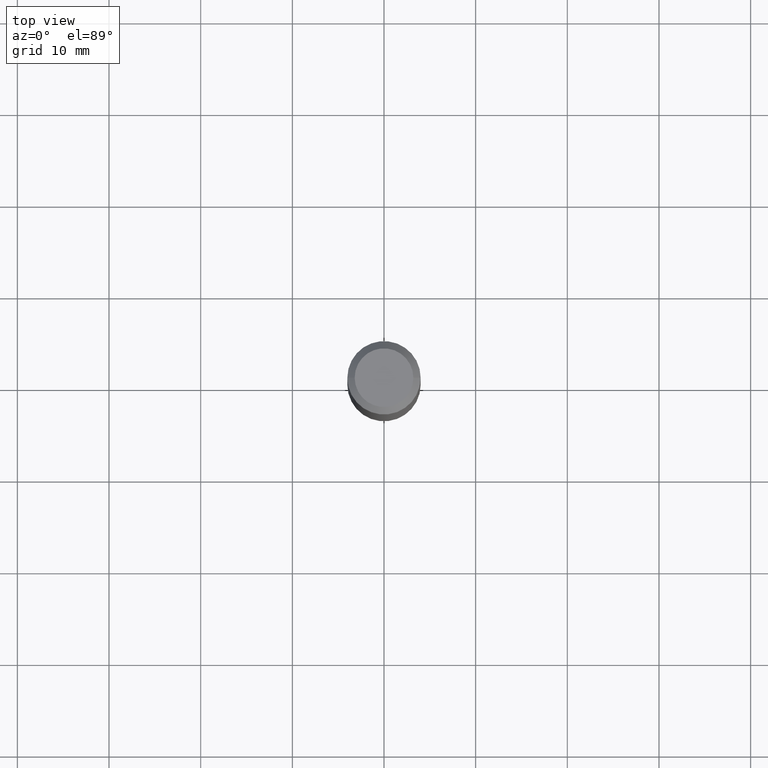
[diagram: clean part render]
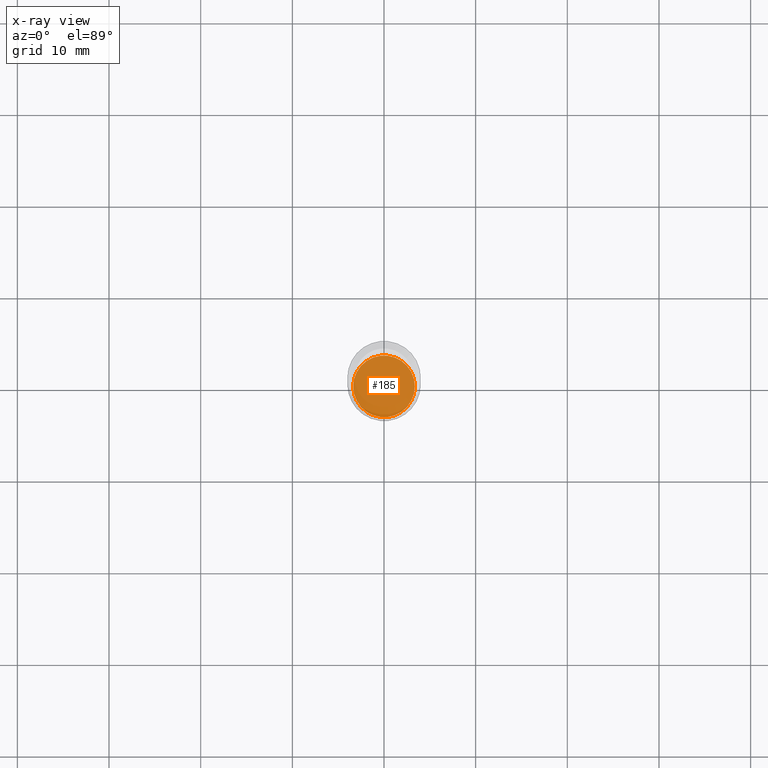
[diagram: x-ray — body ghosted, one internal face saturated and labeled with its STEP entity id]
A machine part, top view, then the same camera in x-ray: the body is ghosted and one INTERNAL B-rep face — a face not visible from any outside direction — is saturated and labeled: STEP entity #185.
In plain terms, the highlighted planar face has unit normal (-0, 0, 1).
Its self-contained STEP definition (entity closure, byte-faithful):
#3 = DIRECTION ( 'NONE',  ( 1.000000000000000000, -6.982962677686265922E-15, 4.876176775795935793E-29 ) ) ;
#12 = VERTEX_POINT ( 'NONE', #405 ) ;
#19 = AXIS2_PLACEMENT_3D ( 'NONE', #187, #339, #490 ) ;
#63 = ORIENTED_EDGE ( 'NONE', *, *, #239, .F. ) ;
#84 = ORIENTED_EDGE ( 'NONE', *, *, #326, .F. ) ;
#177 = CIRCLE ( 'NONE', #329, 0.1323499999999999954 ) ;
#185 = ADVANCED_FACE ( 'NONE', ( #382 ), #450, .F. ) ;
#187 = CARTESIAN_POINT ( 'NONE',  ( 5.295173606032675561E-29, -7.560104542997063911E-15, -2.165299999999999780 ) ) ;
#223 = DIRECTION ( 'NONE',  ( -2.438088387897960049E-29, 3.491481338843145188E-15, 1.000000000000000000 ) ) ;
#224 = AXIS2_PLACEMENT_3D ( 'NONE', #377, #223, #3 ) ;
#239 = EDGE_CURVE ( 'NONE', #12, #332, #327, .T. ) ;
#240 = CARTESIAN_POINT ( 'NONE',  ( 0.1323499999999999954, -8.484299653388840244E-15, -2.165299999999999780 ) ) ;
#273 = DIRECTION ( 'NONE',  ( -2.445468806185136597E-29, 3.491481338843145583E-15, 1.000000000000000000 ) ) ;
#282 = EDGE_LOOP ( 'NONE', ( #84, #63 ) ) ;
#326 = EDGE_CURVE ( 'NONE', #332, #12, #177, .T. ) ;
#327 = CIRCLE ( 'NONE', #19, 0.1323499999999999954 ) ;
#329 = AXIS2_PLACEMENT_3D ( 'NONE', #345, #273, #386 ) ;
#332 = VERTEX_POINT ( 'NONE', #240 ) ;
#339 = DIRECTION ( 'NONE',  ( -2.445468806185136597E-29, 3.491481338843145583E-15, 1.000000000000000000 ) ) ;
#345 = CARTESIAN_POINT ( 'NONE',  ( 5.295173606032675561E-29, -7.560104542997063911E-15, -2.165299999999999780 ) ) ;
#377 = CARTESIAN_POINT ( 'NONE',  ( 5.295173606032675561E-29, -7.560104542997063911E-15, -2.165299999999999780 ) ) ;
#382 = FACE_OUTER_BOUND ( 'NONE', #282, .T. ) ;
#386 = DIRECTION ( 'NONE',  ( 1.000000000000000000, -6.982962677686270655E-15, 0.000000000000000000 ) ) ;
#405 = CARTESIAN_POINT ( 'NONE',  ( -0.1323499999999999954, -6.617052005044459555E-15, -2.165299999999999780 ) ) ;
#450 = PLANE ( 'NONE',  #224 ) ;
#490 = DIRECTION ( 'NONE',  ( 1.000000000000000000, -6.982962677686270655E-15, 0.000000000000000000 ) ) ;